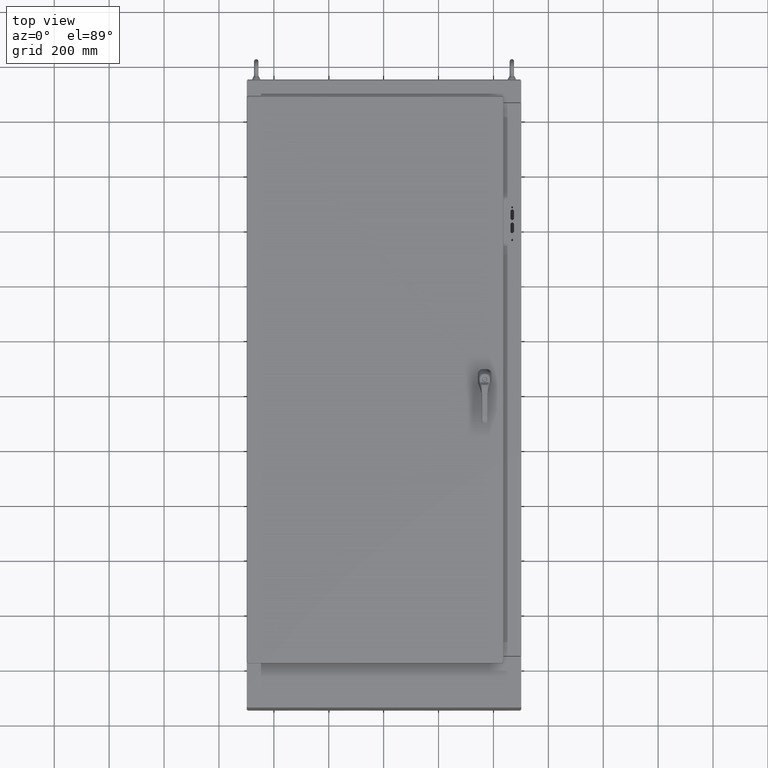
[diagram: clean part render]
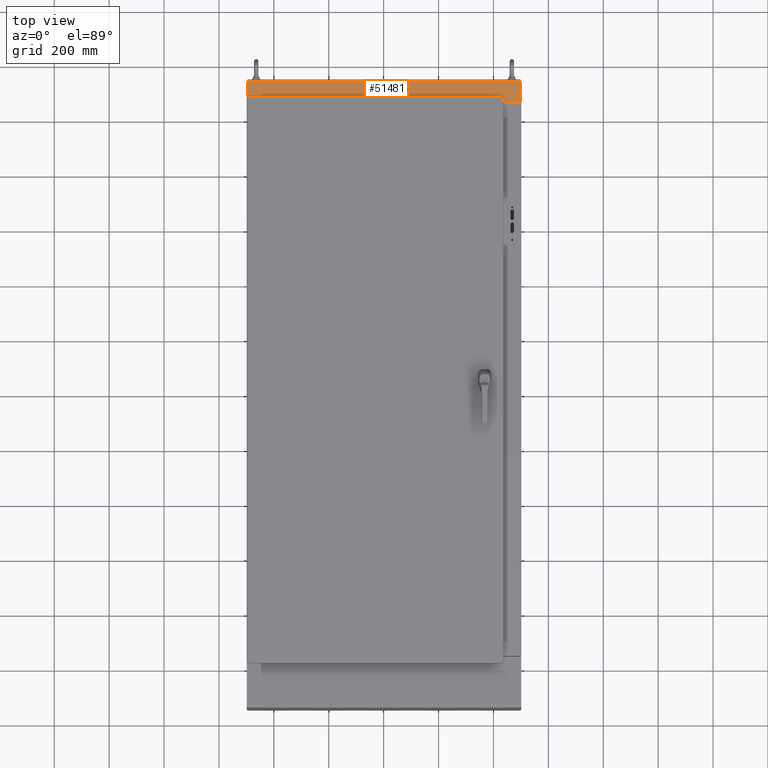
[diagram: same view with one face highlighted and labeled with its STEP entity id]
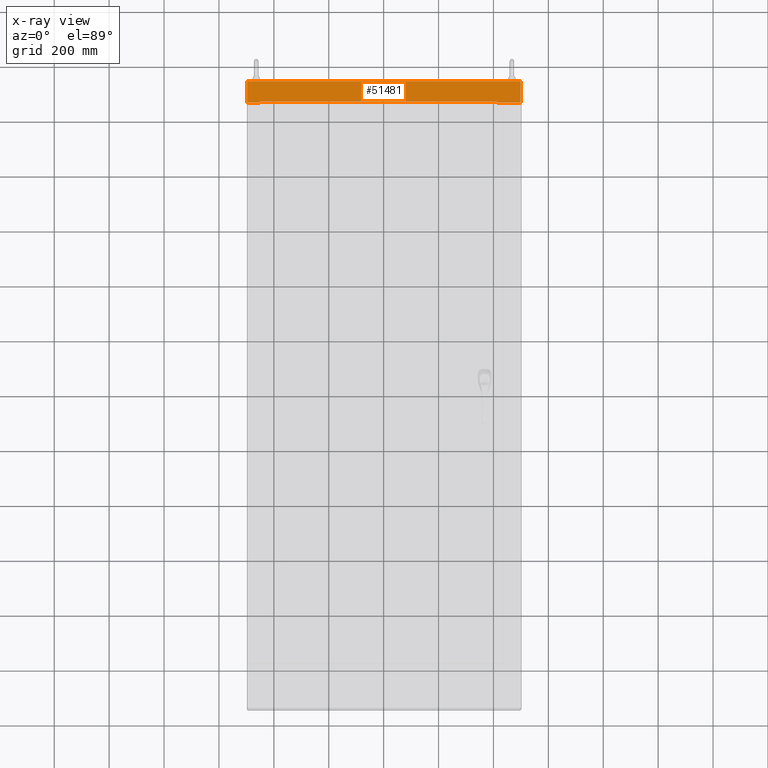
[diagram: x-ray of the same camera — body ghosted, the highlighted face saturated]
A machine part, top view. The second image highlights one B-rep face of the part: STEP entity #51481.
The next image is the same camera in x-ray: the body ghosted, the highlighted face saturated — about 0% of this face is hidden behind the body in this view.
In plain terms, the highlighted planar face has unit normal (0, -0, 1).
Its self-contained STEP definition (entity closure, byte-faithful):
#3241=PLANE('',#56114);
#4494=FACE_OUTER_BOUND('',#7678,.T.);
#7678=EDGE_LOOP('',(#34392,#34393,#34394,#34395,#34396,#34397,#34398,#34399,
#34400,#34401,#34402,#34403));
#11098=LINE('',#78124,#14753);
#11110=LINE('',#78151,#14765);
#11121=LINE('',#78176,#14776);
#11132=LINE('',#78197,#14787);
#11157=LINE('',#78256,#14812);
#11162=LINE('',#78274,#14817);
#11170=LINE('',#78294,#14825);
#11171=LINE('',#78297,#14826);
#11172=LINE('',#78300,#14827);
#11174=LINE('',#78303,#14829);
#11175=LINE('',#78306,#14830);
#11176=LINE('',#78307,#14831);
#14753=VECTOR('',#62343,0.393700787401575);
#14765=VECTOR('',#62361,0.393700787401575);
#14776=VECTOR('',#62380,0.393700787401575);
#14787=VECTOR('',#62395,0.393700787401575);
#14812=VECTOR('',#62444,0.393700787401575);
#14817=VECTOR('',#62463,0.393700787401575);
#14825=VECTOR('',#62491,0.393700787401575);
#14826=VECTOR('',#62496,0.393700787401575);
#14827=VECTOR('',#62499,0.393700787401575);
#14829=VECTOR('',#62503,0.393700787401575);
#14830=VECTOR('',#62506,0.393700787401575);
#14831=VECTOR('',#62507,0.393700787401575);
#21363=VERTEX_POINT('',#78122);
#21364=VERTEX_POINT('',#78123);
#21375=VERTEX_POINT('',#78149);
#21376=VERTEX_POINT('',#78150);
#21386=VERTEX_POINT('',#78174);
#21394=VERTEX_POINT('',#78195);
#21415=VERTEX_POINT('',#78253);
#21416=VERTEX_POINT('',#78255);
#21421=VERTEX_POINT('',#78271);
#21422=VERTEX_POINT('',#78273);
#21425=VERTEX_POINT('',#78299);
#21426=VERTEX_POINT('',#78305);
#26288=EDGE_CURVE('',#21363,#21364,#11098,.T.);
#26300=EDGE_CURVE('',#21375,#21376,#11110,.T.);
#26313=EDGE_CURVE('',#21364,#21386,#11121,.T.);
#26324=EDGE_CURVE('',#21376,#21394,#11132,.T.);
#26355=EDGE_CURVE('',#21416,#21415,#11157,.T.);
#26364=EDGE_CURVE('',#21422,#21421,#11162,.T.);
#26374=EDGE_CURVE('',#21421,#21416,#11170,.T.);
#26375=EDGE_CURVE('',#21394,#21422,#11171,.T.);
#26376=EDGE_CURVE('',#21415,#21425,#11172,.T.);
#26378=EDGE_CURVE('',#21425,#21363,#11174,.T.);
#26379=EDGE_CURVE('',#21426,#21386,#11175,.T.);
#26380=EDGE_CURVE('',#21426,#21375,#11176,.T.);
#34392=ORIENTED_EDGE('',*,*,#26288,.T.);
#34393=ORIENTED_EDGE('',*,*,#26313,.T.);
#34394=ORIENTED_EDGE('',*,*,#26379,.F.);
#34395=ORIENTED_EDGE('',*,*,#26380,.T.);
#34396=ORIENTED_EDGE('',*,*,#26300,.T.);
#34397=ORIENTED_EDGE('',*,*,#26324,.T.);
#34398=ORIENTED_EDGE('',*,*,#26375,.T.);
#34399=ORIENTED_EDGE('',*,*,#26364,.T.);
#34400=ORIENTED_EDGE('',*,*,#26374,.T.);
#34401=ORIENTED_EDGE('',*,*,#26355,.T.);
#34402=ORIENTED_EDGE('',*,*,#26376,.T.);
#34403=ORIENTED_EDGE('',*,*,#26378,.T.);
#51481=ADVANCED_FACE('',(#4494),#3241,.T.);
#56114=AXIS2_PLACEMENT_3D('',#78304,#62504,#62505);
#62343=DIRECTION('',(1.,7.14226860753238E-17,-5.5049775066977E-15));
#62361=DIRECTION('',(1.,7.14226860753238E-17,-2.81226496807941E-14));
#62380=DIRECTION('',(0.,0.,-1.));
#62395=DIRECTION('',(0.,0.,-1.));
#62444=DIRECTION('',(0.,0.,-1.));
#62463=DIRECTION('',(0.,0.,1.));
#62491=DIRECTION('',(1.,7.14226860753238E-17,0.));
#62496=DIRECTION('',(1.,7.14226860753238E-17,0.));
#62499=DIRECTION('',(1.,7.14226860753238E-17,0.));
#62503=DIRECTION('',(0.,0.,1.));
#62504=DIRECTION('center_axis',(-7.14226860753237E-17,1.,0.));
#62505=DIRECTION('ref_axis',(0.,0.,1.));
#62506=DIRECTION('',(1.,5.85962673823239E-45,7.14226860753238E-17));
#62507=DIRECTION('',(0.,0.,1.));
#78122=CARTESIAN_POINT('',(35.7712,24.021,3.323));
#78123=CARTESIAN_POINT('',(39.167,24.021,3.32299999999998));
#78124=CARTESIAN_POINT('',(37.4691,24.021,3.32299999999999));
#78149=CARTESIAN_POINT('',(3.91638569041364E-15,24.021,3.32299999999993));
#78150=CARTESIAN_POINT('',(1.77080000000001,24.021,3.32299999999988));
#78151=CARTESIAN_POINT('',(19.5835,24.021,3.32299999999938));
#78174=CARTESIAN_POINT('',(39.167,24.021,0.244624999999993));
#78176=CARTESIAN_POINT('',(39.167,24.021,3.375));
#78195=CARTESIAN_POINT('',(1.7708,24.021,3.17705));
#78197=CARTESIAN_POINT('',(1.7708,24.021,1.7395));
#78253=CARTESIAN_POINT('',(35.771,24.021,3.17705));
#78255=CARTESIAN_POINT('',(35.771,24.021,3.17725));
#78256=CARTESIAN_POINT('',(35.771,24.021,1.7395));
#78271=CARTESIAN_POINT('',(1.771,24.021,3.17725));
#78273=CARTESIAN_POINT('',(1.771,24.021,3.17705));
#78274=CARTESIAN_POINT('',(1.771,24.021,1.640525));
#78294=CARTESIAN_POINT('',(37.469,24.021,3.17725));
#78297=CARTESIAN_POINT('',(20.4689,24.021,3.17705));
#78299=CARTESIAN_POINT('',(35.7712,24.021,3.17705));
#78300=CARTESIAN_POINT('',(37.469,24.021,3.17705));
#78303=CARTESIAN_POINT('',(35.7712,24.021,1.640525));
#78304=CARTESIAN_POINT('Origin',(39.167,24.021,0.104));
#78305=CARTESIAN_POINT('',(-1.05928771285465E-17,24.021,0.244624999999989));
#78306=CARTESIAN_POINT('',(39.167,24.021,0.244624999999988));
#78307=CARTESIAN_POINT('',(-5.59482469102441E-15,24.021,3.375));